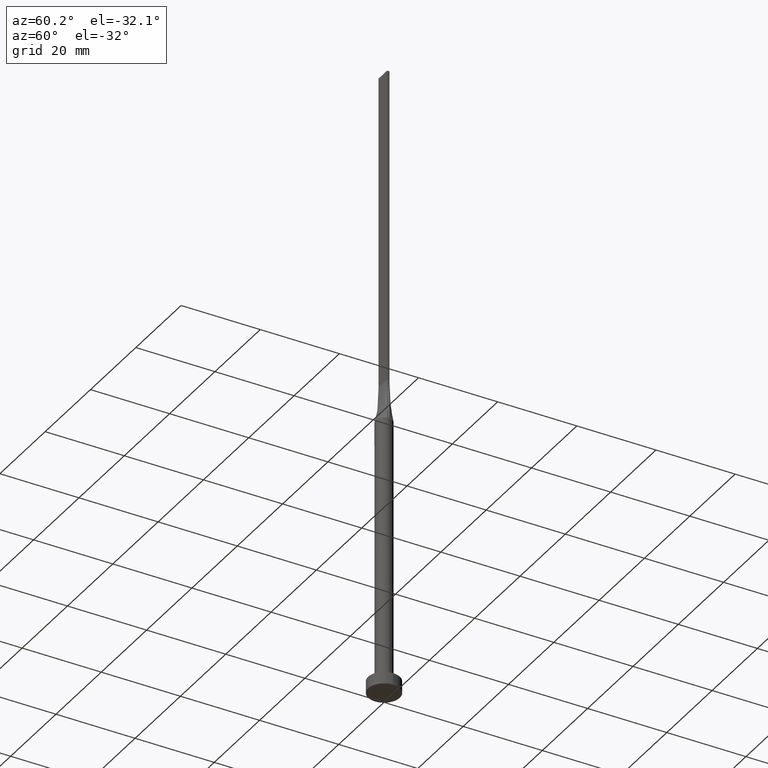
[diagram: clean part render]
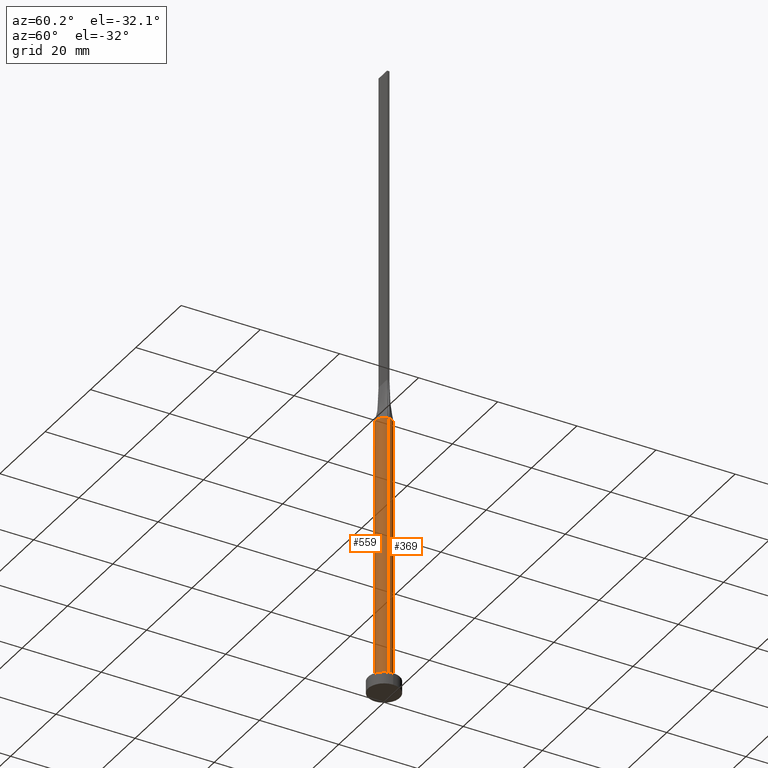
[diagram: same view with one multi-face feature highlighted, each face labeled with its STEP entity id]
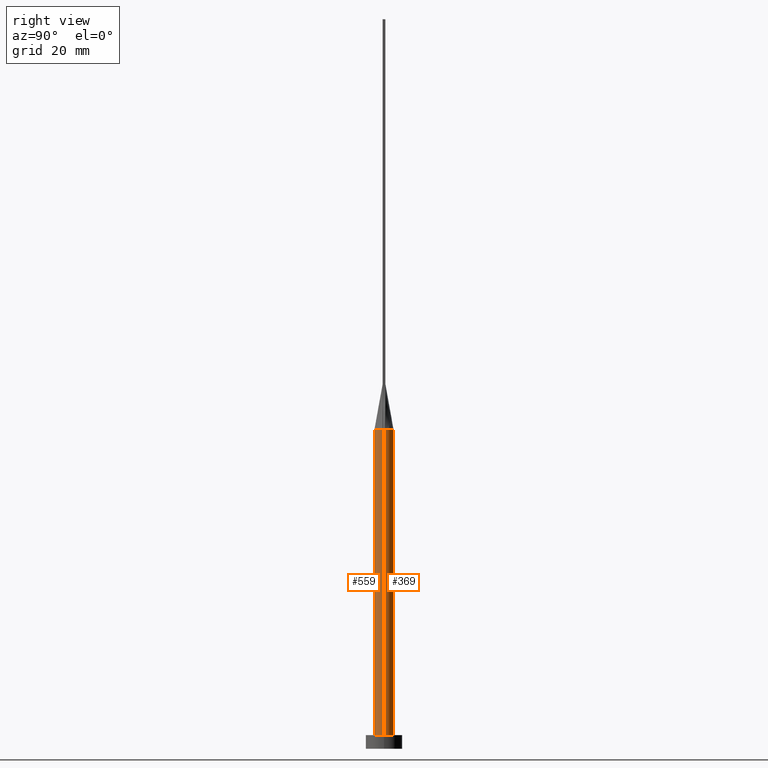
[diagram: same view with one multi-face feature highlighted, each face labeled with its STEP entity id]
A machine part, auxiliary view. The highlighted faces form ONE feature: a constant-radius fillet chain: 2 tangent blend faces with common blend radius 2.1 mm. The faces share edges in the B-rep.
A second angle (right view) of the same feature is appended — it is thin or edge-on in the first view.
Their STEP definitions:
[1] entity #559 (Cylinder):
#3 = EDGE_CURVE ( 'NONE', #276, #480, #293, .T. ) ;
#42 = FACE_OUTER_BOUND ( 'NONE', #534, .T. ) ;
#43 = VECTOR ( 'NONE', #45, 1000.000000000000000 ) ;
#45 = DIRECTION ( 'NONE',  ( -0.000000000000000000, -0.000000000000000000, -1.000000000000000000 ) ) ;
#49 = CYLINDRICAL_SURFACE ( 'NONE', #439, 2.100000000000000089 ) ;
#66 = DIRECTION ( 'NONE',  ( 0.000000000000000000, 0.000000000000000000, 1.000000000000000000 ) ) ;
#70 = ORIENTED_EDGE ( 'NONE', *, *, #283, .F. ) ;
#74 = VERTEX_POINT ( 'NONE', #274 ) ;
#83 = CARTESIAN_POINT ( 'NONE',  ( -2.099921383865792635, -5.254633567926592411E-16, 70.00000000000000000 ) ) ;
#90 = DIRECTION ( 'NONE',  ( 0.000000000000000000, 0.000000000000000000, 1.000000000000000000 ) ) ;
#112 = CARTESIAN_POINT ( 'NONE',  ( 0.000000000000000000, 0.000000000000000000, 70.00000000000000000 ) ) ;
#118 = VERTEX_POINT ( 'NONE', #363 ) ;
#120 = DIRECTION ( 'NONE',  ( -0.000000000000000000, -0.000000000000000000, -1.000000000000000000 ) ) ;
#127 = DIRECTION ( 'NONE',  ( 1.000000000000000000, 0.000000000000000000, 0.000000000000000000 ) ) ;
#133 = AXIS2_PLACEMENT_3D ( 'NONE', #228, #90, #406 ) ;
#161 = EDGE_CURVE ( 'NONE', #276, #207, #372, .T. ) ;
#168 = DIRECTION ( 'NONE',  ( 0.000000000000000000, 0.000000000000000000, 1.000000000000000000 ) ) ;
#169 = CARTESIAN_POINT ( 'NONE',  ( 0.000000000000000000, 0.000000000000000000, 70.00000000000000000 ) ) ;
#172 = DIRECTION ( 'NONE',  ( 1.000000000000000000, -7.993605777301127091E-15, 0.000000000000000000 ) ) ;
#176 = CIRCLE ( 'NONE', #200, 2.100000000000000089 ) ;
#181 = DIRECTION ( 'NONE',  ( -1.000000000000000000, 0.000000000000000000, 0.000000000000000000 ) ) ;
#193 = EDGE_CURVE ( 'NONE', #480, #214, #468, .T. ) ;
#200 = AXIS2_PLACEMENT_3D ( 'NONE', #112, #168, #386 ) ;
#207 = VERTEX_POINT ( 'NONE', #422 ) ;
#214 = VERTEX_POINT ( 'NONE', #391 ) ;
#217 = EDGE_CURVE ( 'NONE', #74, #214, #349, .T. ) ;
#228 = CARTESIAN_POINT ( 'NONE',  ( 0.000000000000000000, 0.000000000000000000, 70.00000000000000000 ) ) ;
#238 = ORIENTED_EDGE ( 'NONE', *, *, #193, .T. ) ;
#239 = CARTESIAN_POINT ( 'NONE',  ( 0.000000000000000000, 0.000000000000000000, 3.000000000000000000 ) ) ;
#254 = DIRECTION ( 'NONE',  ( 0.000000000000000000, 0.000000000000000000, 1.000000000000000000 ) ) ;
#264 = EDGE_CURVE ( 'NONE', #207, #118, #176, .T. ) ;
#274 = CARTESIAN_POINT ( 'NONE',  ( 2.099921383865792635, 5.174786140116233847E-16, 70.00000000000000000 ) ) ;
#276 = VERTEX_POINT ( 'NONE', #83 ) ;
#283 = EDGE_CURVE ( 'NONE', #118, #74, #529, .T. ) ;
#293 = LINE ( 'NONE', #578, #318 ) ;
#302 = CARTESIAN_POINT ( 'NONE',  ( 0.000000000000000000, 0.000000000000000000, 70.00000000000000000 ) ) ;
#318 = VECTOR ( 'NONE', #120, 1000.000000000000000 ) ;
#326 = AXIS2_PLACEMENT_3D ( 'NONE', #302, #254, #172 ) ;
#344 = ORIENTED_EDGE ( 'NONE', *, *, #217, .F. ) ;
#349 = LINE ( 'NONE', #535, #43 ) ;
#363 = CARTESIAN_POINT ( 'NONE',  ( 2.074492141291045755, -0.3275508996892426139, 70.00000000000000000 ) ) ;
#372 = CIRCLE ( 'NONE', #133, 2.100000000000000089 ) ;
#386 = DIRECTION ( 'NONE',  ( 1.000000000000000000, 0.000000000000000000, 0.000000000000000000 ) ) ;
#391 = CARTESIAN_POINT ( 'NONE',  ( 2.100000000000000089, 2.571758278209441957E-16, 3.000000000000000000 ) ) ;
#406 = DIRECTION ( 'NONE',  ( 1.000000000000000000, 0.000000000000000000, 0.000000000000000000 ) ) ;
#422 = CARTESIAN_POINT ( 'NONE',  ( -2.074486960997361962, -0.3275502116714910095, 70.00000000000000000 ) ) ;
#439 = AXIS2_PLACEMENT_3D ( 'NONE', #169, #547, #181 ) ;
#468 = CIRCLE ( 'NONE', #540, 2.100000000000000089 ) ;
#480 = VERTEX_POINT ( 'NONE', #488 ) ;
#488 = CARTESIAN_POINT ( 'NONE',  ( -2.100000000000000089, 0.000000000000000000, 3.000000000000000000 ) ) ;
#512 = ORIENTED_EDGE ( 'NONE', *, *, #161, .F. ) ;
#515 = ORIENTED_EDGE ( 'NONE', *, *, #3, .T. ) ;
#529 = CIRCLE ( 'NONE', #326, 2.100000000000000089 ) ;
#534 = EDGE_LOOP ( 'NONE', ( #344, #70, #571, #512, #515, #238 ) ) ;
#535 = CARTESIAN_POINT ( 'NONE',  ( 2.100000000000000089, 2.571758278209441957E-16, 70.00000000000000000 ) ) ;
#540 = AXIS2_PLACEMENT_3D ( 'NONE', #239, #66, #127 ) ;
#547 = DIRECTION ( 'NONE',  ( -0.000000000000000000, -0.000000000000000000, -1.000000000000000000 ) ) ;
#559 = ADVANCED_FACE ( 'NONE', ( #42 ), #49, .T. ) ;
#571 = ORIENTED_EDGE ( 'NONE', *, *, #264, .F. ) ;
#578 = CARTESIAN_POINT ( 'NONE',  ( -2.100000000000000089, 0.000000000000000000, 70.00000000000000000 ) ) ;
[2] entity #369 (Cylinder):
#3 = EDGE_CURVE ( 'NONE', #276, #480, #293, .T. ) ;
#6 = CARTESIAN_POINT ( 'NONE',  ( -1.692271541701912296, 1.268928319070362631, 70.00000000000001421 ) ) ;
#13 = CARTESIAN_POINT ( 'NONE',  ( -2.047342767731585855, 0.4982646475365663519, 70.00000000000001421 ) ) ;
#23 = VERTEX_POINT ( 'NONE', #35 ) ;
#28 = DIRECTION ( 'NONE',  ( 0.000000000000000000, 0.000000000000000000, 1.000000000000000000 ) ) ;
#33 = ORIENTED_EDGE ( 'NONE', *, *, #217, .T. ) ;
#35 = CARTESIAN_POINT ( 'NONE',  ( 2.074471112824316510, 0.3275477247839024275, 70.00000000000000000 ) ) ;
#43 = VECTOR ( 'NONE', #45, 1000.000000000000000 ) ;
#45 = DIRECTION ( 'NONE',  ( -0.000000000000000000, -0.000000000000000000, -1.000000000000000000 ) ) ;
#52 = CARTESIAN_POINT ( 'NONE',  ( -1.819451111325472326, 1.069832718648841885, 70.00000000000001421 ) ) ;
#56 = CARTESIAN_POINT ( 'NONE',  ( -0.5970064165420507774, 2.033566071616263127, 70.00000000000000000 ) ) ;
#63 = CARTESIAN_POINT ( 'NONE',  ( 0.000000000000000000, 0.000000000000000000, 70.00000000000000000 ) ) ;
#74 = VERTEX_POINT ( 'NONE', #274 ) ;
#76 = ORIENTED_EDGE ( 'NONE', *, *, #414, .F. ) ;
#83 = CARTESIAN_POINT ( 'NONE',  ( -2.099921383865792635, -5.254633567926592411E-16, 70.00000000000000000 ) ) ;
#100 = CARTESIAN_POINT ( 'NONE',  ( 1.692271541701912296, 1.268928319070362187, 70.00000000000000000 ) ) ;
#106 = CARTESIAN_POINT ( 'NONE',  ( 2.074471112824316510, 0.3275477247839024275, 70.00000000000000000 ) ) ;
#107 = EDGE_CURVE ( 'NONE', #23, #489, #223, .T. ) ;
#108 = ORIENTED_EDGE ( 'NONE', *, *, #234, .F. ) ;
#117 = DIRECTION ( 'NONE',  ( 1.000000000000000000, 0.000000000000000000, 0.000000000000000000 ) ) ;
#120 = DIRECTION ( 'NONE',  ( -0.000000000000000000, -0.000000000000000000, -1.000000000000000000 ) ) ;
#155 = CARTESIAN_POINT ( 'NONE',  ( 0.000000000000000000, 0.000000000000000000, 3.000000000000000000 ) ) ;
#180 = CARTESIAN_POINT ( 'NONE',  ( -1.119115561862284558, 1.799829988698611327, 69.99999999999998579 ) ) ;
#186 = CARTESIAN_POINT ( 'NONE',  ( 1.342614810400549086, 1.634425746458369799, 70.00000000000001421 ) ) ;
#201 = DIRECTION ( 'NONE',  ( 1.000000000000000000, 0.000000000000000000, 0.000000000000000000 ) ) ;
#214 = VERTEX_POINT ( 'NONE', #391 ) ;
#215 = DIRECTION ( 'NONE',  ( 1.000000000000000000, 0.000000000000000000, 0.000000000000000000 ) ) ;
#217 = EDGE_CURVE ( 'NONE', #74, #214, #349, .T. ) ;
#223 = B_SPLINE_CURVE_WITH_KNOTS ( 'NONE', 3,
 ( #106, #319, #508, #237, #100, #186, #453, #411, #408, #271, #56, #180, #324, #6, #52, #513, #13, #551 ),
 .UNSPECIFIED., .F., .F.,
 ( 4, 2, 2, 2, 2, 2, 2, 2, 4 ),
 ( 0.000000000000000000, 0.1249999999999999722, 0.2500000000000000000, 0.3750000000000000000, 0.5000000000000000000, 0.6250000000000000000, 0.7500000000000000000, 0.8750000000000000000, 1.000000000000000000 ),
 .UNSPECIFIED. ) ;
#234 = EDGE_CURVE ( 'NONE', #74, #23, #362, .T. ) ;
#235 = AXIS2_PLACEMENT_3D ( 'NONE', #241, #28, #117 ) ;
#237 = CARTESIAN_POINT ( 'NONE',  ( 1.819451111325471215, 1.069832718648841885, 69.99999999999998579 ) ) ;
#241 = CARTESIAN_POINT ( 'NONE',  ( 0.000000000000000000, 0.000000000000000000, 70.00000000000000000 ) ) ;
#244 = ORIENTED_EDGE ( 'NONE', *, *, #107, .F. ) ;
#271 = CARTESIAN_POINT ( 'NONE',  ( -0.2990728642939458615, 2.100000000000000089, 70.00000000000001421 ) ) ;
#274 = CARTESIAN_POINT ( 'NONE',  ( 2.099921383865792635, 5.174786140116233847E-16, 70.00000000000000000 ) ) ;
#276 = VERTEX_POINT ( 'NONE', #83 ) ;
#286 = CYLINDRICAL_SURFACE ( 'NONE', #444, 2.100000000000000089 ) ;
#291 = CARTESIAN_POINT ( 'NONE',  ( 0.000000000000000000, 0.000000000000000000, 70.00000000000000000 ) ) ;
#293 = LINE ( 'NONE', #578, #318 ) ;
#312 = AXIS2_PLACEMENT_3D ( 'NONE', #63, #490, #215 ) ;
#318 = VECTOR ( 'NONE', #120, 1000.000000000000000 ) ;
#319 = CARTESIAN_POINT ( 'NONE',  ( 2.047342767731584967, 0.4982646475365660188, 70.00000000000001421 ) ) ;
#324 = CARTESIAN_POINT ( 'NONE',  ( -1.342614810400549308, 1.634425746458370021, 70.00000000000002842 ) ) ;
#332 = ORIENTED_EDGE ( 'NONE', *, *, #3, .F. ) ;
#340 = EDGE_LOOP ( 'NONE', ( #108, #33, #519, #332, #76, #244 ) ) ;
#349 = LINE ( 'NONE', #535, #43 ) ;
#356 = CIRCLE ( 'NONE', #431, 2.100000000000000089 ) ;
#362 = CIRCLE ( 'NONE', #312, 2.100000000000000089 ) ;
#369 = ADVANCED_FACE ( 'NONE', ( #561 ), #286, .T. ) ;
#374 = DIRECTION ( 'NONE',  ( -1.000000000000000000, 0.000000000000000000, 0.000000000000000000 ) ) ;
#378 = DIRECTION ( 'NONE',  ( 0.000000000000000000, 0.000000000000000000, 1.000000000000000000 ) ) ;
#391 = CARTESIAN_POINT ( 'NONE',  ( 2.100000000000000089, 2.571758278209441957E-16, 3.000000000000000000 ) ) ;
#408 = CARTESIAN_POINT ( 'NONE',  ( 0.2990728642939458615, 2.100000000000000089, 70.00000000000002842 ) ) ;
#411 = CARTESIAN_POINT ( 'NONE',  ( 0.5970064165420508884, 2.033566071616262683, 69.99999999999998579 ) ) ;
#414 = EDGE_CURVE ( 'NONE', #489, #276, #497, .T. ) ;
#424 = CARTESIAN_POINT ( 'NONE',  ( -2.074476228699557279, 0.3275484103472254827, 70.00000000000000000 ) ) ;
#431 = AXIS2_PLACEMENT_3D ( 'NONE', #155, #378, #201 ) ;
#444 = AXIS2_PLACEMENT_3D ( 'NONE', #291, #566, #374 ) ;
#453 = CARTESIAN_POINT ( 'NONE',  ( 1.119115561862284558, 1.799829988698611105, 69.99999999999998579 ) ) ;
#470 = EDGE_CURVE ( 'NONE', #214, #480, #356, .T. ) ;
#480 = VERTEX_POINT ( 'NONE', #488 ) ;
#488 = CARTESIAN_POINT ( 'NONE',  ( -2.100000000000000089, 0.000000000000000000, 3.000000000000000000 ) ) ;
#489 = VERTEX_POINT ( 'NONE', #424 ) ;
#490 = DIRECTION ( 'NONE',  ( 0.000000000000000000, 0.000000000000000000, 1.000000000000000000 ) ) ;
#497 = CIRCLE ( 'NONE', #235, 2.100000000000000089 ) ;
#508 = CARTESIAN_POINT ( 'NONE',  ( 1.996565546919327527, 0.6845950695482651005, 70.00000000000001421 ) ) ;
#513 = CARTESIAN_POINT ( 'NONE',  ( -1.996565546919327527, 0.6845950695482648785, 70.00000000000001421 ) ) ;
#519 = ORIENTED_EDGE ( 'NONE', *, *, #470, .T. ) ;
#535 = CARTESIAN_POINT ( 'NONE',  ( 2.100000000000000089, 2.571758278209441957E-16, 70.00000000000000000 ) ) ;
#551 = CARTESIAN_POINT ( 'NONE',  ( -2.074476228699557279, 0.3275484103472254827, 70.00000000000000000 ) ) ;
#561 = FACE_OUTER_BOUND ( 'NONE', #340, .T. ) ;
#566 = DIRECTION ( 'NONE',  ( -0.000000000000000000, -0.000000000000000000, -1.000000000000000000 ) ) ;
#578 = CARTESIAN_POINT ( 'NONE',  ( -2.100000000000000089, 0.000000000000000000, 70.00000000000000000 ) ) ;